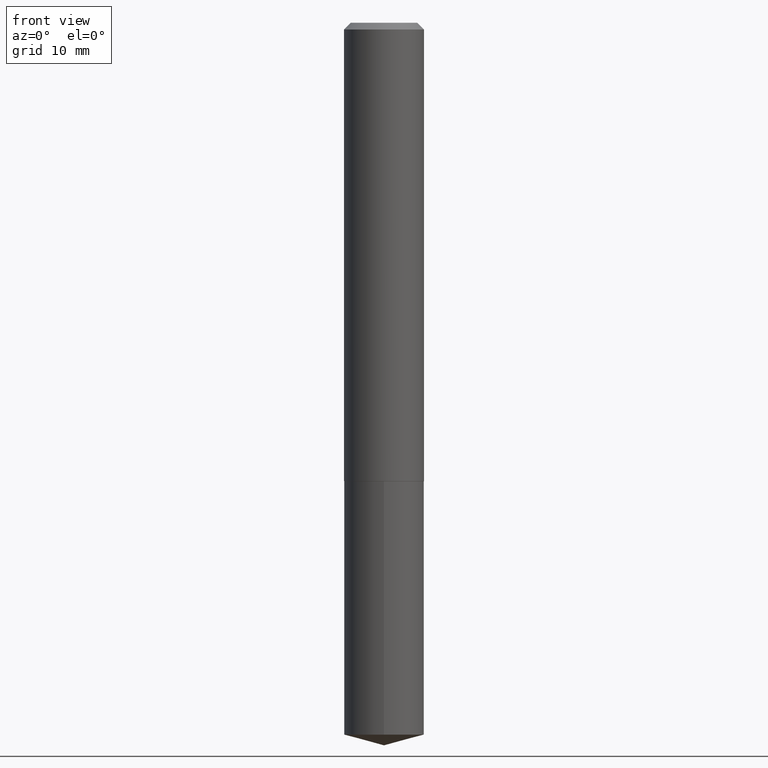
[diagram: clean part render]
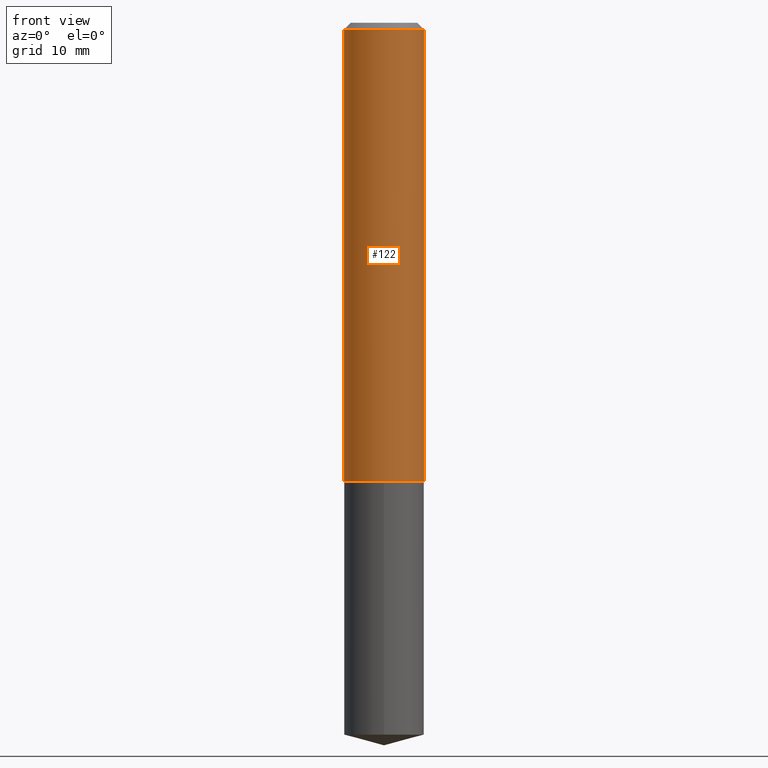
[diagram: same view with one face highlighted and labeled with its STEP entity id]
A machine part, front view. The second image highlights one B-rep face of the part: STEP entity #122.
In plain terms, the highlighted cylindrical surface (partial cylindrical patch) has radius 4.6495 mm, axis along (-0, 0, 1).
Its self-contained STEP definition (entity closure, byte-faithful):
#17 = AXIS2_PLACEMENT_3D ( 'NONE', #55, #328, #145 ) ;
#24 = CYLINDRICAL_SURFACE ( 'NONE', #350, 0.1830500000000001015 ) ;
#25 = DIRECTION ( 'NONE',  ( -2.445468806185136877E-29, 3.491481338843145188E-15, 1.000000000000000000 ) ) ;
#41 = EDGE_CURVE ( 'NONE', #265, #365, #115, .T. ) ;
#43 = VECTOR ( 'NONE', #107, 39.37007874015748143 ) ;
#55 = CARTESIAN_POINT ( 'NONE',  ( 7.642090019328604414E-31, -1.091087918388490513E-16, -0.03125000000000021511 ) ) ;
#58 = CARTESIAN_POINT ( 'NONE',  ( 0.1830500000000001015, -1.278231318150471850E-15, 8.925841588094466461E-30 ) ) ;
#67 = VERTEX_POINT ( 'NONE', #102 ) ;
#83 = CARTESIAN_POINT ( 'NONE',  ( 0.1830500000000000183, -1.387340109989320162E-15, -0.03125000000000021511 ) ) ;
#102 = CARTESIAN_POINT ( 'NONE',  ( -0.1830500000000000183, -2.416295268490077926E-15, -0.03125000000000021511 ) ) ;
#106 = EDGE_CURVE ( 'NONE', #265, #67, #226, .T. ) ;
#107 = DIRECTION ( 'NONE',  ( -2.445468806185136877E-29, 3.491481338843145188E-15, 1.000000000000000000 ) ) ;
#115 = CIRCLE ( 'NONE', #142, 0.1830500000000002403 ) ;
#122 = ADVANCED_FACE ( 'NONE', ( #379 ), #24, .T. ) ;
#125 = CARTESIAN_POINT ( 'NONE',  ( 5.130349008495799778E-29, -7.324778700759037341E-15, -2.097900000000000542 ) ) ;
#140 = CARTESIAN_POINT ( 'NONE',  ( 0.000000000000000000, 0.000000000000000000, 0.000000000000000000 ) ) ;
#142 = AXIS2_PLACEMENT_3D ( 'NONE', #125, #314, #284 ) ;
#145 = DIRECTION ( 'NONE',  ( 1.000000000000000000, -6.982962677686266711E-15, 0.000000000000000000 ) ) ;
#167 = VERTEX_POINT ( 'NONE', #83 ) ;
#169 = CIRCLE ( 'NONE', #17, 0.1830500000000000183 ) ;
#179 = CARTESIAN_POINT ( 'NONE',  ( -0.1830500000000001015, 1.300648477808864112E-15, -9.004110682711610994E-30 ) ) ;
#190 = CARTESIAN_POINT ( 'NONE',  ( -0.1830500000000002403, -6.024130222950171258E-15, -2.097900000000000542 ) ) ;
#200 = ORIENTED_EDGE ( 'NONE', *, *, #233, .F. ) ;
#223 = EDGE_CURVE ( 'NONE', #365, #167, #252, .T. ) ;
#226 = LINE ( 'NONE', #179, #43 ) ;
#233 = EDGE_CURVE ( 'NONE', #67, #167, #169, .T. ) ;
#236 = ORIENTED_EDGE ( 'NONE', *, *, #106, .F. ) ;
#238 = EDGE_LOOP ( 'NONE', ( #236, #368, #371, #200 ) ) ;
#252 = LINE ( 'NONE', #58, #294 ) ;
#254 = DIRECTION ( 'NONE',  ( -2.445468806185136597E-29, 3.491481338843145583E-15, 1.000000000000000000 ) ) ;
#265 = VERTEX_POINT ( 'NONE', #190 ) ;
#284 = DIRECTION ( 'NONE',  ( 1.000000000000000000, -6.982962677686266711E-15, 0.000000000000000000 ) ) ;
#294 = VECTOR ( 'NONE', #25, 39.37007874015748143 ) ;
#296 = DIRECTION ( 'NONE',  ( 1.000000000000000000, -6.982962677686266711E-15, 4.876176775795936353E-29 ) ) ;
#314 = DIRECTION ( 'NONE',  ( -2.445468806185136597E-29, 3.491481338843145583E-15, 1.000000000000000000 ) ) ;
#328 = DIRECTION ( 'NONE',  ( -2.445468806185136597E-29, 3.491481338843145583E-15, 1.000000000000000000 ) ) ;
#350 = AXIS2_PLACEMENT_3D ( 'NONE', #140, #254, #296 ) ;
#363 = CARTESIAN_POINT ( 'NONE',  ( 0.1830500000000002403, -8.603010018909510375E-15, -2.097900000000000542 ) ) ;
#365 = VERTEX_POINT ( 'NONE', #363 ) ;
#368 = ORIENTED_EDGE ( 'NONE', *, *, #41, .T. ) ;
#371 = ORIENTED_EDGE ( 'NONE', *, *, #223, .T. ) ;
#379 = FACE_OUTER_BOUND ( 'NONE', #238, .T. ) ;